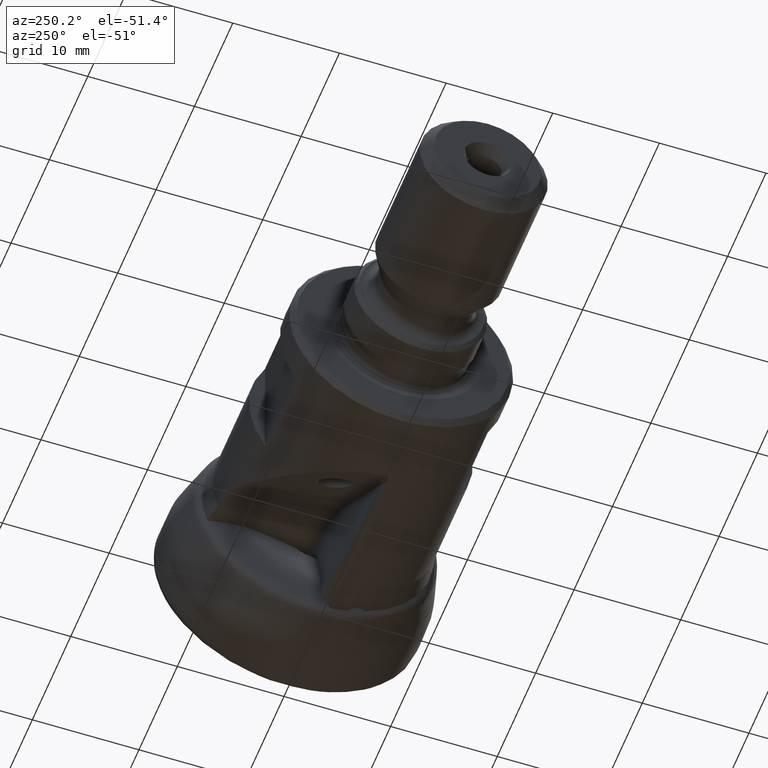
[diagram: clean part render]
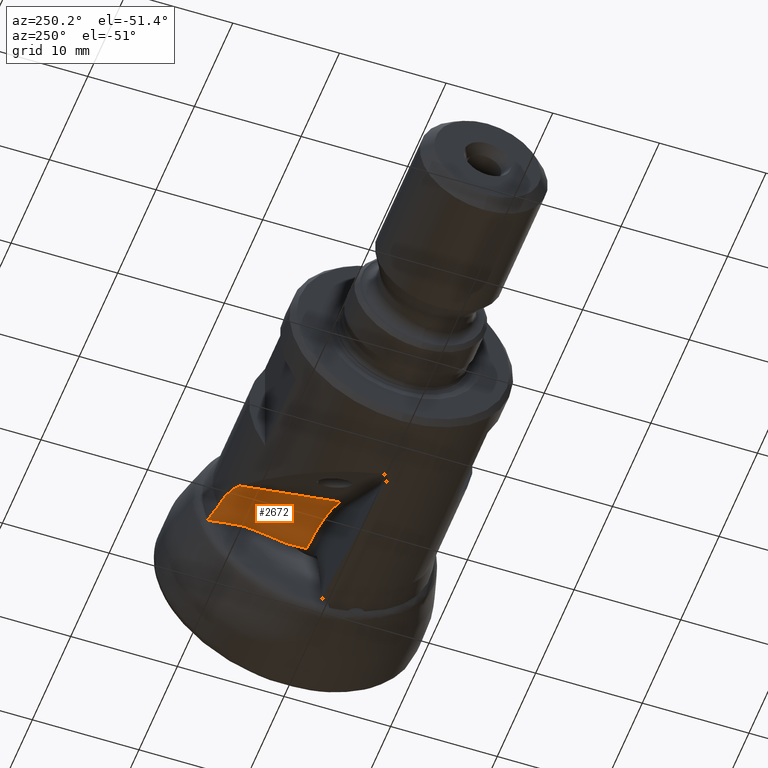
[diagram: same view with one face highlighted and labeled with its STEP entity id]
A machine part, auxiliary view. The second image highlights one B-rep face of the part: STEP entity #2672.
In plain terms, the highlighted conical surface has half-angle 10 deg.
Its self-contained STEP definition (entity closure, byte-faithful):
#59 = EDGE_CURVE ( 'NONE', #1231, #2184, #2460, .T. ) ;
#132 = DIRECTION ( 'NONE',  ( 0.06975647374411163300, -0.9975640502598252000, -7.211082859309712700E-015 ) ) ;
#219 = CARTESIAN_POINT ( 'NONE',  ( -8.810885042676959600, 10.02789329616378900, -3.220446678229608400 ) ) ;
#266 = B_SPLINE_CURVE_WITH_KNOTS ( 'NONE', 3,
 ( #3270, #2574, #1197, #3511, #1870, #326 ),
 .UNSPECIFIED., .F., .F.,
 ( 4, 2, 4 ),
 ( 0.0004361769970185758100, 0.002579508419088320400, 0.004722839841158065500 ),
 .UNSPECIFIED. ) ;
#288 = LINE ( 'NONE', #1617, #1153 ) ;
#290 = CARTESIAN_POINT ( 'NONE',  ( -8.749366312959548300, 6.711636455637002300, -2.619491752655831000 ) ) ;
#326 = CARTESIAN_POINT ( 'NONE',  ( -10.55000000000031500, 9.985565406974913600, -3.246303051630548400 ) ) ;
#409 = EDGE_CURVE ( 'NONE', #2184, #2189, #288, .T. ) ;
#493 = CARTESIAN_POINT ( 'NONE',  ( -8.778983114916172800, 10.35317073493513700, -3.283202809236182700 ) ) ;
#536 = CARTESIAN_POINT ( 'NONE',  ( -8.813228465515006600, 9.529184809298220300, -3.128745213148533400 ) ) ;
#586 = CARTESIAN_POINT ( 'NONE',  ( -14.49160839475476700, 9.367534286264348300, -4.743342850317886500 ) ) ;
#610 = CARTESIAN_POINT ( 'NONE',  ( -8.267881331887066300, 4.772831324847479600, -2.302442553352894300 ) ) ;
#698 = ORIENTED_EDGE ( 'NONE', *, *, #59, .T. ) ;
#768 = CARTESIAN_POINT ( 'NONE',  ( -8.916462952248100000, -0.1222788790223404600, -11.39599995053780600 ) ) ;
#803 = CARTESIAN_POINT ( 'NONE',  ( -8.790610724152339000, 10.31443120545168500, -3.274963648808322700 ) ) ;
#846 = CARTESIAN_POINT ( 'NONE',  ( -8.817039167841827000, 8.698026309463211100, -2.976461024251825900 ) ) ;
#916 = CARTESIAN_POINT ( 'NONE',  ( -8.007675915702295200, 3.804731814812455600, -2.150454633096927600 ) ) ;
#1066 = CARTESIAN_POINT ( 'NONE',  ( -8.778983114916172800, 10.35317073493513700, -3.283202809236182700 ) ) ;
#1101 = EDGE_CURVE ( 'NONE', #3058, #3427, #266, .T. ) ;
#1153 = VECTOR ( 'NONE', #3808, 999.9999999999998900 ) ;
#1197 = CARTESIAN_POINT ( 'NONE',  ( -13.30488542165850100, 9.704191605680064100, -4.019248608320285900 ) ) ;
#1205 = CARTESIAN_POINT ( 'NONE',  ( -8.816495591277156800, 9.030455260480044500, -3.037188478151783900 ) ) ;
#1221 = CARTESIAN_POINT ( 'NONE',  ( -7.749142207620829800, 2.835750117608391000, -2.001280855252674900 ) ) ;
#1231 = VERTEX_POINT ( 'NONE', #1894 ) ;
#1233 = B_SPLINE_CURVE_WITH_KNOTS ( 'NONE', 3,
 ( #2939, #1992, #2955, #1066 ),
 .UNSPECIFIED., .F., .F.,
 ( 4, 4 ),
 ( 2.040716809414834500E-007, 0.001807518199906740400 ),
 .UNSPECIFIED. ) ;
#1256 = CARTESIAN_POINT ( 'NONE',  ( -7.664078319098112300, 2.512367836336539800, -1.952143152556425700 ) ) ;
#1284 = DIRECTION ( 'NONE',  ( 0.06975647374411163300, -0.9975640502598252000, -7.211082859309712700E-015 ) ) ;
#1427 = VECTOR ( 'NONE', #3573, 1000.000000000000000 ) ;
#1521 = CARTESIAN_POINT ( 'NONE',  ( -8.815938224845638200, 8.199603447901608900, -2.885737071359380400 ) ) ;
#1617 = CARTESIAN_POINT ( 'NONE',  ( -7.419781576488787800, -0.01762072192035675800, -1.509190984566666000 ) ) ;
#1635 = CARTESIAN_POINT ( 'NONE',  ( -10.55000000000031500, 9.985565406974913600, -3.246303051630548400 ) ) ;
#1689 = AXIS2_PLACEMENT_3D ( 'NONE', #768, #132, #3261 ) ;
#1751 = ORIENTED_EDGE ( 'NONE', *, *, #2737, .F. ) ;
#1759 = CARTESIAN_POINT ( 'NONE',  ( -8.811171865499028800, 10.19457047236886300, -3.251053762274472200 ) ) ;
#1827 = CARTESIAN_POINT ( 'NONE',  ( -8.814809410755813700, 7.701156685729101200, -2.795173163936600000 ) ) ;
#1870 = CARTESIAN_POINT ( 'NONE',  ( -11.26906418052038800, 9.957747916080689900, -3.331869115662275900 ) ) ;
#1894 = CARTESIAN_POINT ( 'NONE',  ( -8.778983114916172800, 10.35317073493513700, -3.283202809236182700 ) ) ;
#1906 = CIRCLE ( 'NONE', #3246, 9.896527080209011700 ) ;
#1992 = CARTESIAN_POINT ( 'NONE',  ( -9.959581912842265800, 10.12845633124590200, -3.196347417452253500 ) ) ;
#2066 = CARTESIAN_POINT ( 'NONE',  ( -8.809779935113688500, 10.15255204751297300, -3.243455040853125300 ) ) ;
#2141 = CARTESIAN_POINT ( 'NONE',  ( -8.531585471061497100, 5.739833043440620000, -2.457289243710636800 ) ) ;
#2184 = VERTEX_POINT ( 'NONE', #1256 ) ;
#2189 = VERTEX_POINT ( 'NONE', #3745 ) ;
#2290 = EDGE_CURVE ( 'NONE', #2189, #2478, #1906, .T. ) ;
#2381 = CARTESIAN_POINT ( 'NONE',  ( -8.812915978121139900, 9.695436283229856400, -3.159244361218559200 ) ) ;
#2458 = CARTESIAN_POINT ( 'NONE',  ( -8.355448555547788200, 5.095252540768481900, -2.353698247492715700 ) ) ;
#2460 = B_SPLINE_CURVE_WITH_KNOTS ( 'NONE', 3,
 ( #493, #803, #3325, #1759, #2066, #219, #2712, #2381, #536, #1205, #846, #1521, #3032, #1827, #3402, #3705, #290, #4015, #2141, #2458, #610, #2783, #916, #3106, #1221, #3413 ),
 .UNSPECIFIED., .F., .F.,
 ( 4, 2, 2, 2, 2, 2, 2, 2, 2, 2, 2, 2, 4 ),
 ( 0.0001039435430594922400, 0.0002276052603667524600, 0.0003512669776740126900, 0.0005985904122885331500, 0.001093237281517579600, 0.002082531019975667700, 0.002577177889204713700, 0.003071824758433759700, 0.004061118496891852200, 0.005050412235349944200, 0.006039705973808036200, 0.007028999712266129900, 0.008018293450724222800 ),
 .UNSPECIFIED. ) ;
#2478 = VERTEX_POINT ( 'NONE', #3831 ) ;
#2574 = CARTESIAN_POINT ( 'NONE',  ( -13.92318558424193500, 9.566557083381418600, -4.350296651766700300 ) ) ;
#2653 = EDGE_CURVE ( 'NONE', #3427, #1231, #1233, .T. ) ;
#2672 = ADVANCED_FACE ( 'NONE', ( #2706 ), #3630, .F. ) ;
#2706 = FACE_OUTER_BOUND ( 'NONE', #3684, .T. ) ;
#2707 = ORIENTED_EDGE ( 'NONE', *, *, #2653, .T. ) ;
#2712 = CARTESIAN_POINT ( 'NONE',  ( -8.811490845016093600, 9.944782548603054600, -3.205130227181465700 ) ) ;
#2737 = EDGE_CURVE ( 'NONE', #3058, #2478, #3009, .T. ) ;
#2756 = ORIENTED_EDGE ( 'NONE', *, *, #409, .T. ) ;
#2783 = CARTESIAN_POINT ( 'NONE',  ( -8.094375728164028100, 4.127494542066538800, -2.200772036730240800 ) ) ;
#2939 = CARTESIAN_POINT ( 'NONE',  ( -10.55000000000031500, 9.985565406974913600, -3.246303051630548400 ) ) ;
#2955 = CARTESIAN_POINT ( 'NONE',  ( -9.369149832003701700, 10.25052624677484700, -3.208599424789417000 ) ) ;
#2967 = CARTESIAN_POINT ( 'NONE',  ( -14.83214926941335100, -0.5359439636395293400, -3.344072442501443600 ) ) ;
#3009 = LINE ( 'NONE', #2967, #1427 ) ;
#3032 = CARTESIAN_POINT ( 'NONE',  ( -8.815592913154976200, 8.033454462015209100, -2.855525837079504500 ) ) ;
#3058 = VERTEX_POINT ( 'NONE', #586 ) ;
#3106 = CARTESIAN_POINT ( 'NONE',  ( -7.832148514746673000, 3.159559261914324200, -2.051210563417253500 ) ) ;
#3167 = CARTESIAN_POINT ( 'NONE',  ( -8.957397731393223600, 0.4631157358244025700, -11.39599995053780300 ) ) ;
#3246 = AXIS2_PLACEMENT_3D ( 'NONE', #3167, #1284, #3473 ) ;
#3261 = DIRECTION ( 'NONE',  ( 0.9975640502598250900, 0.06975647374411163300, 0.0000000000000000000 ) ) ;
#3270 = CARTESIAN_POINT ( 'NONE',  ( -14.49160839475476700, 9.367534286264348300, -4.743342850317886500 ) ) ;
#3325 = CARTESIAN_POINT ( 'NONE',  ( -8.802061942204499400, 10.27563687994224000, -3.266782395740432100 ) ) ;
#3333 = ORIENTED_EDGE ( 'NONE', *, *, #1101, .T. ) ;
#3402 = CARTESIAN_POINT ( 'NONE',  ( -8.813604679521802200, 7.535096430577125300, -2.765103108400973400 ) ) ;
#3413 = CARTESIAN_POINT ( 'NONE',  ( -7.664078319098112300, 2.512367836336539800, -1.952143152556425700 ) ) ;
#3427 = VERTEX_POINT ( 'NONE', #1635 ) ;
#3473 = DIRECTION ( 'NONE',  ( 0.9975640502598250900, 0.06975647374411161900, 0.0000000000000000000 ) ) ;
#3511 = CARTESIAN_POINT ( 'NONE',  ( -11.96635819300559300, 9.901359291518490500, -3.505535376443424500 ) ) ;
#3573 = DIRECTION ( 'NONE',  ( -0.03402809869650028800, -0.9895920296329570000, 0.1398202538476670000 ) ) ;
#3630 = CONICAL_SURFACE ( 'NONE', #1689, 10.00000000000001100, 0.1745329251994329800 ) ;
#3684 = EDGE_LOOP ( 'NONE', ( #2707, #698, #2756, #4033, #1751, #3333 ) ) ;
#3705 = CARTESIAN_POINT ( 'NONE',  ( -8.788625471272357700, 7.039420380814415300, -2.676667367552578300 ) ) ;
#3745 = CARTESIAN_POINT ( 'NONE',  ( -7.476202954828574200, 0.5666909644168570700, -1.611492683679149700 ) ) ;
#3808 = DIRECTION ( 'NONE',  ( 0.09468631551085751600, -0.9805914409962620500, 0.1716826359881885000 ) ) ;
#3831 = CARTESIAN_POINT ( 'NONE',  ( -14.81187271497800100, 0.05373096461930640400, -3.427388087421639400 ) ) ;
#4015 = CARTESIAN_POINT ( 'NONE',  ( -8.623187993981357400, 6.061589469916405900, -2.509485075437405400 ) ) ;
#4033 = ORIENTED_EDGE ( 'NONE', *, *, #2290, .T. ) ;